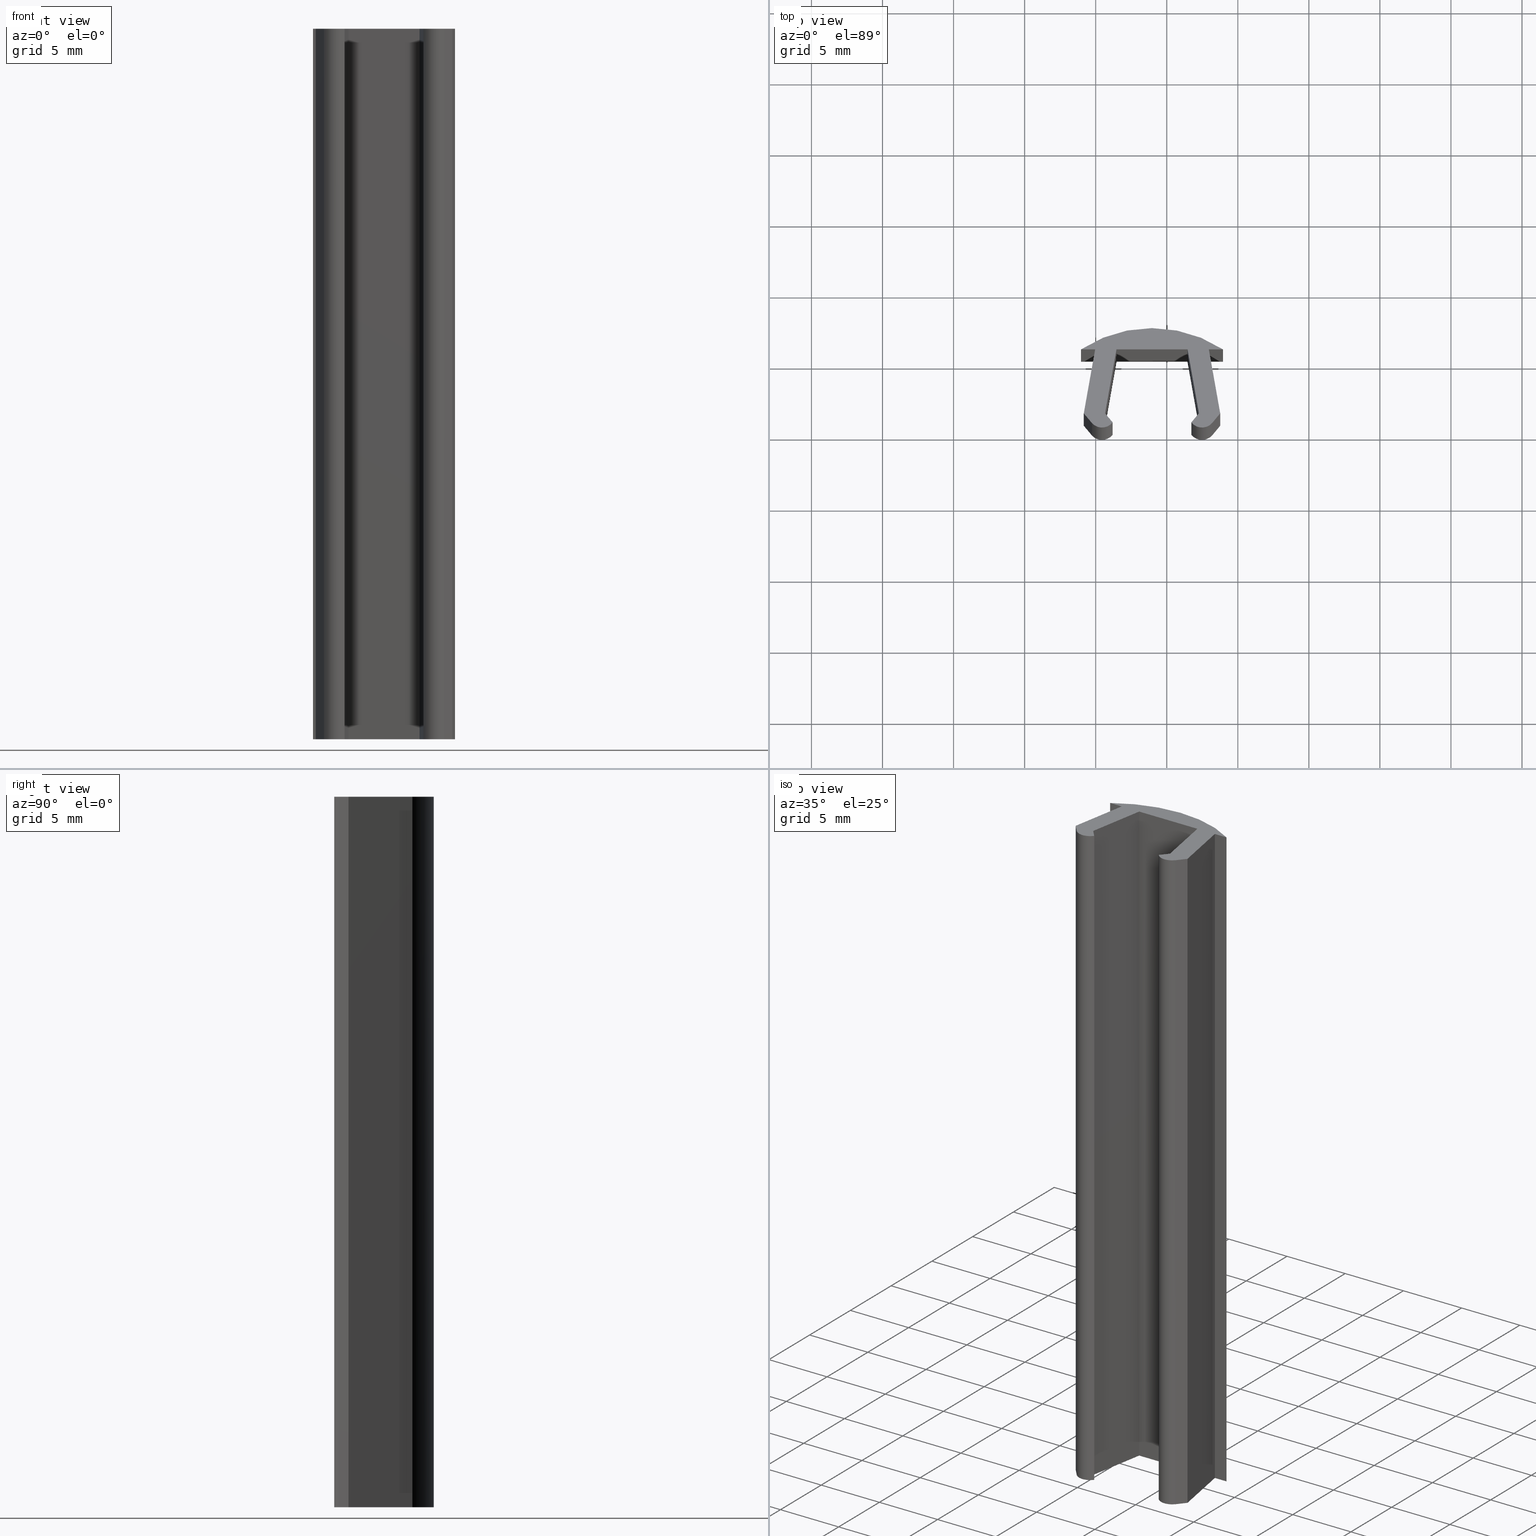
[diagram: canonical four-view strip — front | top / right | iso, engineering-drawing reading convention]
A machine part, canonical four-view strip (front | top / right | iso — engineering-drawing reading convention). The complete STEP part file that produces these views, byte-faithful:
ISO-10303-21;
HEADER;
FILE_DESCRIPTION (( 'STEP AP203' ),
    '1' );
FILE_NAME ('A39-25.STEP',
    '2018-04-03T11:34:47',
    ( 'User2' ),
    ( '' ),
    'SwSTEP 2.0',
    'SolidWorks 2007',
    '' );
FILE_SCHEMA (( 'CONFIG_CONTROL_DESIGN' ));
ENDSEC;

DATA;
#1 = DATE_TIME_ROLE ( 'creation_date' ) ;
#2 = PERSON_AND_ORGANIZATION_ROLE ( 'creator' ) ;
#3 = CARTESIAN_POINT ( 'NONE',  ( -0.8367053140000001400, 1.000000000000000000, 49.99999999999999300 ) ) ;
#4 = APPROVAL_ROLE ( '' ) ;
#5 = APPROVAL_STATUS ( 'not_yet_approved' ) ;
#6 = APPLICATION_PROTOCOL_DEFINITION ( 'international standard', 'config_control_design', 1994, #10 ) ;
#7 = CARTESIAN_POINT ( 'NONE',  ( -0.8367053138553806100, 1.000000000813483900, 0.0000000000000000000 ) ) ;
#8 = CARTESIAN_POINT ( 'NONE',  ( 7.963294685841867200, 5.500000000000000000, 0.0000000000000000000 ) ) ;
#9 = CARTESIAN_POINT ( 'NONE',  ( 8.963294685248413900, 5.500000000429616300, 50.00000000000000000 ) ) ;
#10 = APPLICATION_CONTEXT ( 'configuration controlled 3d designs of mechanical parts and assemblies' ) ;
#11 = PERSON_AND_ORGANIZATION_ROLE ( 'design_owner' ) ;
#12 = MECHANICAL_CONTEXT ( 'NONE', #14, 'mechanical' ) ;
#13 = APPLICATION_PROTOCOL_DEFINITION ( 'international standard', 'config_control_design', 1994, #14 ) ;
#14 = APPLICATION_CONTEXT ( 'configuration controlled 3d designs of mechanical parts and assemblies' ) ;
#15 = CARTESIAN_POINT ( 'NONE',  ( -1.036705315469700400, 5.499999998997998900, 0.0000000000000000000 ) ) ;
#16 = CARTESIAN_POINT ( 'NONE',  ( -0.2632543417690722500, 0.3146320893094953800, 49.99999999999999300 ) ) ;
#17 = CARTESIAN_POINT ( 'NONE',  ( 1.193008794993660500, 0.3669048105073159400, 50.00000000000000000 ) ) ;
#18 = CARTESIAN_POINT ( 'NONE',  ( 6.733580575902364800, 0.3669048108833120000, 0.0000000000000000000 ) ) ;
#19 = CARTESIAN_POINT ( 'NONE',  ( 1.463294687006839500, 5.499999998929228100, -8.673617379884035500E-016 ) ) ;
#20 = CARTESIAN_POINT ( 'NONE',  ( 8.763294684144618400, 0.9999999977825164700, 0.0000000000000000000 ) ) ;
#21 = DIRECTION ( 'NONE',  ( 1.000000000000000000, 0.0000000000000000000, 0.0000000000000000000 ) ) ;
#22 = DIRECTION ( 'NONE',  ( 0.0000000000000000000, 0.0000000000000000000, 1.000000000000000000 ) ) ;
#23 = CARTESIAN_POINT ( 'NONE',  ( 0.6632946842099405300, 1.000000002139414400, 0.0000000000000000000 ) ) ;
#24 = CARTESIAN_POINT ( 'NONE',  ( 0.0000000000000000000, 0.0000000000000000000, 0.0000000000000000000 ) ) ;
#25 =( NAMED_UNIT ( * ) SI_UNIT ( $, .STERADIAN. ) SOLID_ANGLE_UNIT ( ) );
#26 =( NAMED_UNIT ( * ) PLANE_ANGLE_UNIT ( ) SI_UNIT ( $, .RADIAN. ) );
#27 =( LENGTH_UNIT ( ) NAMED_UNIT ( * ) SI_UNIT ( .MILLI., .METRE. ) );
#28 = DIRECTION ( 'NONE',  ( -0.0000000000000000000, -0.0000000000000000000, -1.000000000000000000 ) ) ;
#29 = CARTESIAN_POINT ( 'NONE',  ( 8.189843712769047100, 0.3146320893094646200, 50.00000000000000000 ) ) ;
#30 = CARTESIAN_POINT ( 'NONE',  ( 6.463294684993158500, 5.499999998929228100, 0.0000000000000000000 ) ) ;
#31 = CARTESIAN_POINT ( 'NONE',  ( -0.2632543390000000000, 0.3146320860000000300, 25.00000000000000000 ) ) ;
#32 = CARTESIAN_POINT ( 'NONE',  ( 8.763294686000000100, 1.000000000000000000, 50.00000000000000000 ) ) ;
#33 = CARTESIAN_POINT ( 'NONE',  ( 7.263294687790059700, 1.000000002139414400, 0.0000000000000000000 ) ) ;
#34 = CARTESIAN_POINT ( 'NONE',  ( 7.263294686000000100, 1.000000000000000000, 50.00000000000000000 ) ) ;
#35 = DIRECTION ( 'NONE',  ( -0.6417093793053494400, 0.7669478942611049900, 0.0000000000000000000 ) ) ;
#36 = CARTESIAN_POINT ( 'NONE',  ( -0.2632543360799998700, 0.3146320859640001100, 0.0000000000000000000 ) ) ;
#37 = CARTESIAN_POINT ( 'NONE',  ( 8.189843712769047100, 0.3146320893094646800, -1.734723475976807100E-015 ) ) ;
#38 = CARTESIAN_POINT ( 'NONE',  ( 1.193008794993660500, 0.3669048105073159400, 0.0000000000000000000 ) ) ;
#39 = DIRECTION ( 'NONE',  ( 1.000000000000000000, 0.0000000000000000000, 0.0000000000000000000 ) ) ;
#40 = CARTESIAN_POINT ( 'NONE',  ( -0.03670531402000054600, 5.499999998997998900, 50.00000000000000000 ) ) ;
#41 = DIRECTION ( 'NONE',  ( -0.0000000000000000000, -0.0000000000000000000, -1.000000000000000000 ) ) ;
#42 = CARTESIAN_POINT ( 'NONE',  ( 1.193008794792056200, 0.3669048102480050300, 25.00000000000000000 ) ) ;
#43 = CARTESIAN_POINT ( 'NONE',  ( 6.463294686178134200, 5.499999998997998900, 50.00000000000000000 ) ) ;
#44 = CARTESIAN_POINT ( 'NONE',  ( -0.03670531404000108200, 5.499999997995998600, 0.0000000000000000000 ) ) ;
#45 = DIRECTION ( 'NONE',  ( 0.1750333347174945200, 0.9845625077859065900, 0.0000000000000000000 ) ) ;
#46 = CARTESIAN_POINT ( 'NONE',  ( -0.2632543211076045500, 0.3146320663425941600, 0.0000000000000000000 ) ) ;
#47 = CARTESIAN_POINT ( 'NONE',  ( -0.4367053140000000700, 3.250000000000000000, 0.0000000000000000000 ) ) ;
#48 = CARTESIAN_POINT ( 'NONE',  ( 1.463294685821866300, 5.499999998997998900, 50.00000000000000000 ) ) ;
#49 = CARTESIAN_POINT ( 'NONE',  ( 7.963294686000001100, 5.500000000000000000, 50.00000000000000000 ) ) ;
#50 = CARTESIAN_POINT ( 'NONE',  ( 6.733580575902364800, 0.3669048108833120000, 50.00000000000000000 ) ) ;
#51 = CARTESIAN_POINT ( 'NONE',  ( -1.036705315469700400, 5.499999998997998900, 50.00000000000000000 ) ) ;
#52 = CARTESIAN_POINT ( 'NONE',  ( 8.963294685248413900, 5.500000000429616300, 0.0000000000000000000 ) ) ;
#53 = APPROVAL_ROLE ( '' ) ;
#54 = APPROVAL_STATUS ( 'not_yet_approved' ) ;
#55 = DATE_TIME_ROLE ( 'classification_date' ) ;
#56 = PERSON_AND_ORGANIZATION_ROLE ( 'classification_officer' ) ;
#57 = SECURITY_CLASSIFICATION_LEVEL ( 'unclassified' ) ;
#58 = PERSON_AND_ORGANIZATION_ROLE ( 'design_supplier' ) ;
#59 = CARTESIAN_POINT ( 'NONE',  ( 0.6632946860000001900, 1.000000000000000000, 50.00000000000000000 ) ) ;
#60 = CARTESIAN_POINT ( 'NONE',  ( -0.8367053140000001400, 1.000000000000000000, 25.00000000000000000 ) ) ;
#61 = PERSON_AND_ORGANIZATION_ROLE ( 'creator' ) ;
#62 = APPROVAL_ROLE ( '' ) ;
#63 = APPROVAL_STATUS ( 'not_yet_approved' ) ;
#64 = DIRECTION ( 'NONE',  ( 0.0000000000000000000, 0.0000000000000000000, 1.000000000000000000 ) ) ;
#65 = CARTESIAN_POINT ( 'NONE',  ( 8.463294686000001100, 5.500000000000000000, 50.00000000000000000 ) ) ;
#66 = DIRECTION ( 'NONE',  ( 0.0000000000000000000, 0.0000000000000000000, 1.000000000000000000 ) ) ;
#67 = CARTESIAN_POINT ( 'NONE',  ( 8.963294684596828400, 5.500000000859232700, 25.00000000000000000 ) ) ;
#68 = DIRECTION ( 'NONE',  ( 1.000000000000000000, 0.0000000000000000000, 0.0000000000000000000 ) ) ;
#69 = DIRECTION ( 'NONE',  ( -0.0000000000000000000, 0.0000000000000000000, -1.000000000000000000 ) ) ;
#70 = CARTESIAN_POINT ( 'NONE',  ( 7.483580575999998700, 0.9500000000000000700, 0.0000000000000000000 ) ) ;
#71 = DIRECTION ( 'NONE',  ( 0.6417093791478050100, 0.7669478943929233200, -0.0000000000000000000 ) ) ;
#72 = CARTESIAN_POINT ( 'NONE',  ( 8.476569198000000000, 0.6573160430000000200, 50.00000000000000000 ) ) ;
#73 = DIRECTION ( 'NONE',  ( 0.0000000000000000000, 0.0000000000000000000, 1.000000000000000000 ) ) ;
#74 = CARTESIAN_POINT ( 'NONE',  ( 8.763294686000000100, 1.000000000000000000, 25.00000000000000000 ) ) ;
#75 = DIRECTION ( 'NONE',  ( -0.6417093791478050100, -0.7669478943929233200, 0.0000000000000000000 ) ) ;
#76 = CARTESIAN_POINT ( 'NONE',  ( 7.963294686040000200, 5.499999997995998600, 0.0000000000000000000 ) ) ;
#77 = CARTESIAN_POINT ( 'NONE',  ( 0.4430087950000001200, 0.9500000000000000700, 50.00000000000000000 ) ) ;
#78 = CARTESIAN_POINT ( 'NONE',  ( 8.476569198000000000, 0.6573160430000000200, 0.0000000000000000000 ) ) ;
#79 = DIRECTION ( 'NONE',  ( -1.000000000000000000, 0.0000000000000000000, 0.0000000000000000000 ) ) ;
#80 = CARTESIAN_POINT ( 'NONE',  ( 3.963294685999999800, 5.499999997995998600, 0.0000000000000000000 ) ) ;
#81 = DIRECTION ( 'NONE',  ( -0.0000000000000000000, -0.0000000000000000000, -1.000000000000000000 ) ) ;
#82 = CARTESIAN_POINT ( 'NONE',  ( 1.463294685999999600, 5.500000000000000000, 25.00000000000000000 ) ) ;
#83 = DIRECTION ( 'NONE',  ( -1.000000000000000000, 0.0000000000000000000, 0.0000000000000000000 ) ) ;
#84 = CARTESIAN_POINT ( 'NONE',  ( 3.963294685999999800, 5.499999997995998600, 50.00000000000000000 ) ) ;
#85 = DIRECTION ( 'NONE',  ( 0.6417093790113396200, -0.7669478945071045400, 0.0000000000000000000 ) ) ;
#86 = CARTESIAN_POINT ( 'NONE',  ( 0.9281517404999999300, 0.6834524055000000800, 0.0000000000000000000 ) ) ;
#87 = DIRECTION ( 'NONE',  ( -0.1750333347174943500, -0.9845625077859065900, 0.0000000000000000000 ) ) ;
#88 = CARTESIAN_POINT ( 'NONE',  ( 1.463294685999999600, 5.500000000000000000, 50.00000000000000000 ) ) ;
#89 = DIRECTION ( 'NONE',  ( 0.1750333338303418600, -0.9845625079436226600, 0.0000000000000000000 ) ) ;
#90 = DIRECTION ( 'NONE',  ( 1.000000000000000000, 0.0000000000000000000, 0.0000000000000000000 ) ) ;
#91 = DIRECTION ( 'NONE',  ( -0.0000000000000000000, 0.0000000000000000000, -1.000000000000000000 ) ) ;
#92 = DIRECTION ( 'NONE',  ( -0.0000000000000000000, -0.0000000000000000000, -1.000000000000000000 ) ) ;
#93 = CARTESIAN_POINT ( 'NONE',  ( 0.6632946860000001900, 1.000000000000000000, 25.00000000000000000 ) ) ;
#94 = CARTESIAN_POINT ( 'NONE',  ( 0.4430087950000001200, 0.9500000000000000700, 0.0000000000000000000 ) ) ;
#95 = DIRECTION ( 'NONE',  ( -0.1750333359766786100, -0.9845625075620516600, 0.0000000000000000000 ) ) ;
#96 = CARTESIAN_POINT ( 'NONE',  ( 1.463294687239998800, 5.499999997995998600, 0.0000000000000000000 ) ) ;
#97 = DIRECTION ( 'NONE',  ( 0.0000000000000000000, 0.0000000000000000000, 1.000000000000000000 ) ) ;
#98 = DIRECTION ( 'NONE',  ( 0.0000000000000000000, 0.0000000000000000000, 1.000000000000000000 ) ) ;
#99 = CARTESIAN_POINT ( 'NONE',  ( 8.189843709999999900, 0.3146320860000000300, 25.00000000000000000 ) ) ;
#100 = DIRECTION ( 'NONE',  ( -0.1750333359766791700, 0.9845625075620515500, 0.0000000000000000000 ) ) ;
#101 = CARTESIAN_POINT ( 'NONE',  ( -0.03670531400000000300, 5.500000000000000000, 25.00000000000000000 ) ) ;
#102 = DIRECTION ( 'NONE',  ( -1.000000000000000000, 0.0000000000000000000, 0.0000000000000000000 ) ) ;
#103 = CARTESIAN_POINT ( 'NONE',  ( 3.963294685999999800, 5.499999997995998600, 50.00000000000000000 ) ) ;
#104 = DIRECTION ( 'NONE',  ( -1.000000000000000000, 0.0000000000000000000, 0.0000000000000000000 ) ) ;
#105 = CARTESIAN_POINT ( 'NONE',  ( 7.263294690839999600, 0.9999999971920000600, 0.0000000000000000000 ) ) ;
#106 = CARTESIAN_POINT ( 'NONE',  ( 3.963294685999999800, 5.499999997995998600, 0.0000000000000000000 ) ) ;
#107 = DIRECTION ( 'NONE',  ( -0.0000000000000000000, -0.0000000000000000000, -1.000000000000000000 ) ) ;
#108 = CARTESIAN_POINT ( 'NONE',  ( 6.463294686000000200, 5.500000000000000000, 25.00000000000000000 ) ) ;
#109 = DIRECTION ( 'NONE',  ( -0.6417093790113396200, 0.7669478945071045400, -0.0000000000000000000 ) ) ;
#110 = DIRECTION ( 'NONE',  ( -0.1750333347174943800, 0.9845625077859065900, 0.0000000000000000000 ) ) ;
#111 = CARTESIAN_POINT ( 'NONE',  ( 7.263294686000000100, 1.000000000000000000, 50.00000000000000000 ) ) ;
#112 = DIRECTION ( 'NONE',  ( 1.000000000000000000, 0.0000000000000000000, 0.0000000000000000000 ) ) ;
#113 = CARTESIAN_POINT ( 'NONE',  ( 7.963294686000001100, 5.500000000000000000, 50.00000000000000000 ) ) ;
#114 = CARTESIAN_POINT ( 'NONE',  ( 0.9281517404999999300, 0.6834524055000000800, 50.00000000000000000 ) ) ;
#115 = DIRECTION ( 'NONE',  ( 0.1750333347174942400, -0.9845625077859065900, 0.0000000000000000000 ) ) ;
#116 = DIRECTION ( 'NONE',  ( -0.1750333347174945200, -0.9845625077859065900, -0.0000000000000000000 ) ) ;
#117 = CARTESIAN_POINT ( 'NONE',  ( -0.4367053140000000700, 3.250000000000000000, 50.00000000000000000 ) ) ;
#118 = DIRECTION ( 'NONE',  ( -0.6417093784895814300, 0.7669478949436624400, 0.0000000000000000000 ) ) ;
#119 = CARTESIAN_POINT ( 'NONE',  ( -0.2632543390000000000, 0.3146320860000000300, 49.99999999999998600 ) ) ;
#120 = DIRECTION ( 'NONE',  ( 1.000000000000000000, 0.0000000000000000000, 0.0000000000000000000 ) ) ;
#121 = DIRECTION ( 'NONE',  ( -0.0000000000000000000, 0.0000000000000000000, -1.000000000000000000 ) ) ;
#122 = ADVANCED_FACE ( 'NONE', ( #452 ), #181, .F. ) ;
#123 = ADVANCED_FACE ( 'NONE', ( #455 ), #456, .T. ) ;
#124 = ADVANCED_FACE ( 'NONE', ( #458 ), #180, .F. ) ;
#125 = MANIFOLD_SOLID_BREP ( 'NONE', #403 ) ;
#126 = ADVANCED_FACE ( 'NONE', ( #460 ), #196, .F. ) ;
#127 = ADVANCED_FACE ( 'NONE', ( #462 ), #463, .T. ) ;
#128 = ADVANCED_FACE ( 'NONE', ( #464 ), #226, .F. ) ;
#129 = ADVANCED_FACE ( 'NONE', ( #465 ), #234, .F. ) ;
#130 = ADVANCED_BREP_SHAPE_REPRESENTATION ( 'A39-25', ( #125, #497 ), #310 ) ;
#131 = ADVANCED_FACE ( 'NONE', ( #466 ), #467, .T. ) ;
#132 = ADVANCED_FACE ( 'NONE', ( #468 ), #205, .F. ) ;
#133 = ADVANCED_FACE ( 'NONE', ( #469 ), #531, .F. ) ;
#134 = ADVANCED_FACE ( 'NONE', ( #470 ), #527, .F. ) ;
#135 = ADVANCED_FACE ( 'NONE', ( #471 ), #535, .F. ) ;
#136 = ADVANCED_FACE ( 'NONE', ( #472 ), #539, .F. ) ;
#137 = ADVANCED_FACE ( 'NONE', ( #473 ), #543, .F. ) ;
#138 = ADVANCED_FACE ( 'NONE', ( #238 ), #547, .T. ) ;
#139 = ADVANCED_FACE ( 'NONE', ( #239 ), #551, .F. ) ;
#140 = UNCERTAINTY_MEASURE_WITH_UNIT (LENGTH_MEASURE( 1.000000000000000100E-005 ), #27, 'distance_accuracy_value', 'NONE');
#141 = EDGE_CURVE ( 'NONE', #222, #207, #244, .T. ) ;
#142 = EDGE_CURVE ( 'NONE', #231, #207, #242, .T. ) ;
#143 = EDGE_CURVE ( 'NONE', #185, #228, #240, .T. ) ;
#144 = EDGE_CURVE ( 'NONE', #228, #197, #459, .T. ) ;
#145 = EDGE_CURVE ( 'NONE', #185, #189, #454, .T. ) ;
#146 = EDGE_CURVE ( 'NONE', #228, #191, #444, .T. ) ;
#147 = EDGE_CURVE ( 'NONE', #197, #189, #448, .T. ) ;
#148 = EDGE_CURVE ( 'NONE', #202, #231, #431, .T. ) ;
#149 = EDGE_CURVE ( 'NONE', #202, #229, #434, .T. ) ;
#150 = EDGE_CURVE ( 'NONE', #229, #200, #421, .T. ) ;
#151 = EDGE_CURVE ( 'NONE', #222, #188, #424, .T. ) ;
#152 = EDGE_CURVE ( 'NONE', #207, #194, #415, .T. ) ;
#153 = EDGE_CURVE ( 'NONE', #185, #214, #410, .T. ) ;
#154 = EDGE_CURVE ( 'NONE', #214, #192, #246, .T. ) ;
#155 = EDGE_CURVE ( 'NONE', #189, #192, #247, .T. ) ;
#156 = EDGE_CURVE ( 'NONE', #187, #191, #342, .T. ) ;
#157 = EDGE_CURVE ( 'NONE', #211, #212, #270, .T. ) ;
#158 = EDGE_CURVE ( 'NONE', #195, #211, #266, .T. ) ;
#159 = EDGE_CURVE ( 'NONE', #199, #198, #264, .T. ) ;
#160 = EDGE_CURVE ( 'NONE', #198, #210, #263, .T. ) ;
#161 = EDGE_CURVE ( 'NONE', #213, #210, #269, .T. ) ;
#162 = EDGE_CURVE ( 'NONE', #199, #221, #272, .T. ) ;
#163 = EDGE_CURVE ( 'NONE', #219, #202, #339, .T. ) ;
#164 = EDGE_CURVE ( 'NONE', #213, #229, #338, .T. ) ;
#165 = EDGE_CURVE ( 'NONE', #219, #213, #332, .T. ) ;
#166 = EDGE_CURVE ( 'NONE', #193, #195, #334, .T. ) ;
#167 = EDGE_CURVE ( 'NONE', #221, #195, #328, .T. ) ;
#168 = EDGE_CURVE ( 'NONE', #220, #221, #330, .T. ) ;
#169 = EDGE_CURVE ( 'NONE', #214, #220, #326, .T. ) ;
#170 = EDGE_CURVE ( 'NONE', #220, #193, #276, .T. ) ;
#171 = EDGE_CURVE ( 'NONE', #192, #193, #277, .T. ) ;
#172 = EDGE_CURVE ( 'NONE', #194, #187, #279, .T. ) ;
#173 = EDGE_CURVE ( 'NONE', #194, #188, #281, .T. ) ;
#174 = EDGE_CURVE ( 'NONE', #191, #188, #283, .T. ) ;
#175 = EDGE_CURVE ( 'NONE', #187, #197, #323, .T. ) ;
#176 = EDGE_CURVE ( 'NONE', #231, #200, #273, .T. ) ;
#177 = EDGE_CURVE ( 'NONE', #222, #200, #318, .T. ) ;
#178 = DIRECTION ( 'NONE',  ( 1.000000000000000000, 0.0000000000000000000, 0.0000000000000000000 ) ) ;
#179 = DIRECTION ( 'NONE',  ( 1.000000000000000000, 0.0000000000000000000, 0.0000000000000000000 ) ) ;
#180 = PLANE ( 'NONE',  #517 ) ;
#181 = PLANE ( 'NONE',  #515 ) ;
#182 = DIRECTION ( 'NONE',  ( 0.1750333347174945200, 0.9845625077859065900, 0.0000000000000000000 ) ) ;
#183 = CARTESIAN_POINT ( 'NONE',  ( -0.8367053140000001400, 1.000000000000000000, 0.0000000000000000000 ) ) ;
#184 = CARTESIAN_POINT ( 'NONE',  ( -0.2632543390000000000, 0.3146320860000000300, 0.0000000000000000000 ) ) ;
#185 = VERTEX_POINT ( 'NONE', #34 ) ;
#186 = DIRECTION ( 'NONE',  ( 0.7669478949436625600, 0.6417093784895815400, -0.0000000000000000000 ) ) ;
#187 = VERTEX_POINT ( 'NONE', #37 ) ;
#188 = VERTEX_POINT ( 'NONE', #32 ) ;
#189 = VERTEX_POINT ( 'NONE', #33 ) ;
#190 = DIRECTION ( 'NONE',  ( -0.6417093784895814300, 0.7669478949436624400, 0.0000000000000000000 ) ) ;
#191 = VERTEX_POINT ( 'NONE', #29 ) ;
#192 = VERTEX_POINT ( 'NONE', #30 ) ;
#193 = VERTEX_POINT ( 'NONE', #19 ) ;
#194 = VERTEX_POINT ( 'NONE', #20 ) ;
#195 = VERTEX_POINT ( 'NONE', #23 ) ;
#196 = PLANE ( 'NONE',  #518 ) ;
#197 = VERTEX_POINT ( 'NONE', #18 ) ;
#198 = VERTEX_POINT ( 'NONE', #16 ) ;
#199 = VERTEX_POINT ( 'NONE', #17 ) ;
#200 = VERTEX_POINT ( 'NONE', #9 ) ;
#201 = CARTESIAN_POINT ( 'NONE',  ( 6.733580575999998700, 0.3669048110000001100, 0.0000000000000000000 ) ) ;
#202 = VERTEX_POINT ( 'NONE', #15 ) ;
#203 = VERTEX_POINT ( 'NONE', #7 ) ;
#204 = DIRECTION ( 'NONE',  ( -0.9845625077859067000, -0.1750333347174942700, 0.0000000000000000000 ) ) ;
#205 = PLANE ( 'NONE',  #504 ) ;
#206 = CARTESIAN_POINT ( 'NONE',  ( 3.963294686000000700, -2.083333333000000100, 0.0000000000000000000 ) ) ;
#207 = VERTEX_POINT ( 'NONE', #8 ) ;
#208 = CARTESIAN_POINT ( 'NONE',  ( 7.963294686000001100, 5.500000000000000000, 0.0000000000000000000 ) ) ;
#209 = DIRECTION ( 'NONE',  ( 0.9845625077859067000, -0.1750333347174945500, 0.0000000000000000000 ) ) ;
#210 = VERTEX_POINT ( 'NONE', #3 ) ;
#211 = VERTEX_POINT ( 'NONE', #38 ) ;
#212 = VERTEX_POINT ( 'NONE', #46 ) ;
#213 = VERTEX_POINT ( 'NONE', #40 ) ;
#214 = VERTEX_POINT ( 'NONE', #43 ) ;
#215 = DIRECTION ( 'NONE',  ( 0.0000000000000000000, 0.0000000000000000000, 1.000000000000000000 ) ) ;
#216 = DIRECTION ( 'NONE',  ( 0.7669478939108912400, -0.6417093797239122900, 0.0000000000000000000 ) ) ;
#217 = DIRECTION ( 'NONE',  ( 0.0000000000000000000, 1.000000000000000000, 0.0000000000000000000 ) ) ;
#218 = DIRECTION ( 'NONE',  ( 0.6417093797239122900, 0.7669478939108912400, 0.0000000000000000000 ) ) ;
#219 = VERTEX_POINT ( 'NONE', #44 ) ;
#220 = VERTEX_POINT ( 'NONE', #48 ) ;
#221 = VERTEX_POINT ( 'NONE', #59 ) ;
#222 = VERTEX_POINT ( 'NONE', #49 ) ;
#223 = CARTESIAN_POINT ( 'NONE',  ( 7.483580575999998700, 0.9500000000000000700, 0.0000000000000000000 ) ) ;
#224 = DIRECTION ( 'NONE',  ( 0.0000000000000000000, -0.0000000000000000000, 1.000000000000000000 ) ) ;
#225 = DIRECTION ( 'NONE',  ( 1.000000000000000000, 0.0000000000000000000, 0.0000000000000000000 ) ) ;
#226 = PLANE ( 'NONE',  #520 ) ;
#227 = CARTESIAN_POINT ( 'NONE',  ( 8.763294686000000100, 1.000000000000000000, 0.0000000000000000000 ) ) ;
#228 = VERTEX_POINT ( 'NONE', #50 ) ;
#229 = VERTEX_POINT ( 'NONE', #51 ) ;
#230 = DIRECTION ( 'NONE',  ( -0.7669478943929233200, 0.6417093791478051300, 0.0000000000000000000 ) ) ;
#231 = VERTEX_POINT ( 'NONE', #52 ) ;
#232 = CARTESIAN_POINT ( 'NONE',  ( 7.963294686000001100, 5.500000000000000000, 0.0000000000000000000 ) ) ;
#233 = DIRECTION ( 'NONE',  ( 0.0000000000000000000, -0.0000000000000000000, 1.000000000000000000 ) ) ;
#234 = PLANE ( 'NONE',  #521 ) ;
#235 = CARTESIAN_POINT ( 'NONE',  ( 0.4430087950000001200, 0.9500000000000000700, 0.0000000000000000000 ) ) ;
#236 = DIRECTION ( 'NONE',  ( -0.6417093791478050100, -0.7669478943929232100, 0.0000000000000000000 ) ) ;
#237 = DIRECTION ( 'NONE',  ( 0.0000000000000000000, 0.0000000000000000000, 1.000000000000000000 ) ) ;
#238 = FACE_OUTER_BOUND ( 'NONE', #396, .T. ) ;
#239 = FACE_OUTER_BOUND ( 'NONE', #402, .T. ) ;
#240 = LINE ( 'NONE', #565, #461 ) ;
#241 = VECTOR ( 'NONE', #562, 1000.000000000000000 ) ;
#242 = LINE ( 'NONE', #557, #241 ) ;
#243 = VECTOR ( 'NONE', #556, 1000.000000000000000 ) ;
#244 = LINE ( 'NONE', #555, #243 ) ;
#245 = VECTOR ( 'NONE', #110, 1000.000000000000100 ) ;
#246 = LINE ( 'NONE', #108, #344 ) ;
#247 = LINE ( 'NONE', #105, #346 ) ;
#248 = PERSON_AND_ORGANIZATION ( #487, #308 ) ;
#249 = COORDINATED_UNIVERSAL_TIME_OFFSET ( 3, 0, .BEHIND. ) ;
#250 = LOCAL_TIME ( 8, 34, 47.00000000000000000, #249 ) ;
#251 = CALENDAR_DATE ( 2018, 3, 4 ) ;
#252 = DATE_AND_TIME ( #251, #250 ) ;
#253 = PERSON_AND_ORGANIZATION ( #487, #308 ) ;
#254 = APPROVAL_PERSON_ORGANIZATION ( #253, #491, #53 ) ;
#255 = COORDINATED_UNIVERSAL_TIME_OFFSET ( 3, 0, .BEHIND. ) ;
#256 = LOCAL_TIME ( 8, 34, 47.00000000000000000, #255 ) ;
#257 = CALENDAR_DATE ( 2018, 3, 4 ) ;
#258 = DATE_AND_TIME ( #257, #256 ) ;
#259 = APPROVAL_DATE_TIME ( #258, #491 ) ;
#260 = VECTOR ( 'NONE', #45, 1000.000000000000200 ) ;
#261 = PERSON_AND_ORGANIZATION ( #487, #308 ) ;
#262 = ORIENTED_EDGE ( 'NONE', *, *, #144, .T. ) ;
#263 = LINE ( 'NONE', #119, #265 ) ;
#264 = CIRCLE ( 'NONE', #512, 0.9499999999999997300 ) ;
#265 = VECTOR ( 'NONE', #118, 1000.000000000000200 ) ;
#266 = LINE ( 'NONE', #86, #347 ) ;
#267 = ORIENTED_EDGE ( 'NONE', *, *, #174, .F. ) ;
#268 = VECTOR ( 'NONE', #116, 1000.000000000000200 ) ;
#269 = LINE ( 'NONE', #117, #268 ) ;
#270 = CIRCLE ( 'NONE', #506, 0.9499999999999997300 ) ;
#271 = VECTOR ( 'NONE', #109, 1000.000000000000000 ) ;
#272 = LINE ( 'NONE', #114, #271 ) ;
#273 = LINE ( 'NONE', #67, #322 ) ;
#274 = LINE ( 'NONE', #47, #260 ) ;
#275 = LINE ( 'NONE', #42, #314 ) ;
#276 = LINE ( 'NONE', #82, #285 ) ;
#277 = LINE ( 'NONE', #80, #278 ) ;
#278 = VECTOR ( 'NONE', #79, 1000.000000000000000 ) ;
#279 = LINE ( 'NONE', #78, #280 ) ;
#280 = VECTOR ( 'NONE', #75, 1000.000000000000200 ) ;
#281 = LINE ( 'NONE', #74, #282 ) ;
#282 = VECTOR ( 'NONE', #73, 1000.000000000000000 ) ;
#283 = LINE ( 'NONE', #72, #284 ) ;
#284 = VECTOR ( 'NONE', #71, 1000.000000000000200 ) ;
#285 = VECTOR ( 'NONE', #81, 1000.000000000000000 ) ;
#286 = SECURITY_CLASSIFICATION ( '', '', #57 ) ;
#287 = PERSON_AND_ORGANIZATION ( #487, #308 ) ;
#288 = APPROVAL_DATE_TIME ( #290, #477 ) ;
#289 = LOCAL_TIME ( 8, 34, 47.00000000000000000, #292 ) ;
#290 = DATE_AND_TIME ( #291, #289 ) ;
#291 = CALENDAR_DATE ( 2018, 3, 4 ) ;
#292 = COORDINATED_UNIVERSAL_TIME_OFFSET ( 3, 0, .BEHIND. ) ;
#293 = APPROVAL_PERSON_ORGANIZATION ( #294, #477, #62 ) ;
#294 = PERSON_AND_ORGANIZATION ( #487, #308 ) ;
#295 = DATE_AND_TIME ( #297, #298 ) ;
#296 = COORDINATED_UNIVERSAL_TIME_OFFSET ( 3, 0, .BEHIND. ) ;
#297 = CALENDAR_DATE ( 2018, 3, 4 ) ;
#298 = LOCAL_TIME ( 8, 34, 47.00000000000000000, #296 ) ;
#299 = DATE_AND_TIME ( #303, #301 ) ;
#300 = PERSON_AND_ORGANIZATION ( #487, #308 ) ;
#301 = LOCAL_TIME ( 8, 34, 47.00000000000000000, #304 ) ;
#302 = APPROVAL_DATE_TIME ( #299, #482 ) ;
#303 = CALENDAR_DATE ( 2018, 3, 4 ) ;
#304 = COORDINATED_UNIVERSAL_TIME_OFFSET ( 3, 0, .BEHIND. ) ;
#305 = APPROVAL_PERSON_ORGANIZATION ( #306, #482, #4 ) ;
#306 = PERSON_AND_ORGANIZATION ( #487, #308 ) ;
#307 = PERSON_AND_ORGANIZATION ( #487, #308 ) ;
#308 = ORGANIZATION ( 'UNSPECIFIED', 'UNSPECIFIED', '' ) ;
#309 = SHAPE_DEFINITION_REPRESENTATION ( #485, #130 ) ;
#310 =( GEOMETRIC_REPRESENTATION_CONTEXT ( 3 ) GLOBAL_UNCERTAINTY_ASSIGNED_CONTEXT ( ( #140 ) ) GLOBAL_UNIT_ASSIGNED_CONTEXT ( ( #27, #26, #25 ) ) REPRESENTATION_CONTEXT ( 'NONE', 'WORKASPACE' ) );
#311 = VECTOR ( 'NONE', #28, 1000.000000000000000 ) ;
#312 = LINE ( 'NONE', #31, #311 ) ;
#313 = VECTOR ( 'NONE', #35, 1000.000000000000000 ) ;
#314 = VECTOR ( 'NONE', #41, 1000.000000000000000 ) ;
#315 = LINE ( 'NONE', #36, #313 ) ;
#316 = LINE ( 'NONE', #60, #320 ) ;
#317 = VECTOR ( 'NONE', #39, 1000.000000000000000 ) ;
#318 = LINE ( 'NONE', #65, #317 ) ;
#319 = ORIENTED_EDGE ( 'NONE', *, *, #176, .T. ) ;
#320 = VECTOR ( 'NONE', #64, 1000.000000000000000 ) ;
#321 = ORIENTED_EDGE ( 'NONE', *, *, #175, .F. ) ;
#322 = VECTOR ( 'NONE', #66, 1000.000000000000000 ) ;
#323 = CIRCLE ( 'NONE', #505, 0.9500000000000038400 ) ;
#324 = ORIENTED_EDGE ( 'NONE', *, *, #156, .T. ) ;
#325 = ORIENTED_EDGE ( 'NONE', *, *, #146, .F. ) ;
#326 = LINE ( 'NONE', #84, #327 ) ;
#327 = VECTOR ( 'NONE', #83, 1000.000000000000000 ) ;
#328 = LINE ( 'NONE', #93, #329 ) ;
#329 = VECTOR ( 'NONE', #92, 1000.000000000000000 ) ;
#330 = LINE ( 'NONE', #88, #331 ) ;
#331 = VECTOR ( 'NONE', #87, 1000.000000000000100 ) ;
#332 = LINE ( 'NONE', #101, #333 ) ;
#333 = VECTOR ( 'NONE', #97, 1000.000000000000000 ) ;
#334 = LINE ( 'NONE', #96, #335 ) ;
#335 = VECTOR ( 'NONE', #95, 1000.000000000000200 ) ;
#336 = VECTOR ( 'NONE', #102, 1000.000000000000000 ) ;
#337 = VECTOR ( 'NONE', #104, 1000.000000000000000 ) ;
#338 = LINE ( 'NONE', #103, #336 ) ;
#339 = LINE ( 'NONE', #106, #337 ) ;
#340 = ORIENTED_EDGE ( 'NONE', *, *, #156, .F. ) ;
#341 = ORIENTED_EDGE ( 'NONE', *, *, #172, .F. ) ;
#342 = LINE ( 'NONE', #99, #345 ) ;
#343 = ORIENTED_EDGE ( 'NONE', *, *, #173, .T. ) ;
#344 = VECTOR ( 'NONE', #107, 1000.000000000000000 ) ;
#345 = VECTOR ( 'NONE', #98, 1000.000000000000000 ) ;
#346 = VECTOR ( 'NONE', #100, 1000.000000000000100 ) ;
#347 = VECTOR ( 'NONE', #85, 1000.000000000000000 ) ;
#348 = ORIENTED_EDGE ( 'NONE', *, *, #510, .T. ) ;
#349 = ORIENTED_EDGE ( 'NONE', *, *, #177, .F. ) ;
#350 = ORIENTED_EDGE ( 'NONE', *, *, #141, .T. ) ;
#351 = ORIENTED_EDGE ( 'NONE', *, *, #142, .F. ) ;
#352 = ORIENTED_EDGE ( 'NONE', *, *, #144, .F. ) ;
#353 = ORIENTED_EDGE ( 'NONE', *, *, #143, .F. ) ;
#354 = ORIENTED_EDGE ( 'NONE', *, *, #145, .T. ) ;
#355 = ORIENTED_EDGE ( 'NONE', *, *, #147, .F. ) ;
#356 = ORIENTED_EDGE ( 'NONE', *, *, #176, .F. ) ;
#357 = ORIENTED_EDGE ( 'NONE', *, *, #148, .F. ) ;
#358 = ORIENTED_EDGE ( 'NONE', *, *, #149, .T. ) ;
#359 = ORIENTED_EDGE ( 'NONE', *, *, #150, .T. ) ;
#360 = ORIENTED_EDGE ( 'NONE', *, *, #141, .F. ) ;
#361 = ORIENTED_EDGE ( 'NONE', *, *, #151, .T. ) ;
#362 = ORIENTED_EDGE ( 'NONE', *, *, #173, .F. ) ;
#363 = ORIENTED_EDGE ( 'NONE', *, *, #142, .T. ) ;
#364 = ORIENTED_EDGE ( 'NONE', *, *, #152, .T. ) ;
#365 = ORIENTED_EDGE ( 'NONE', *, *, #172, .T. ) ;
#366 = ORIENTED_EDGE ( 'NONE', *, *, #175, .T. ) ;
#367 = ORIENTED_EDGE ( 'NONE', *, *, #147, .T. ) ;
#368 = ORIENTED_EDGE ( 'NONE', *, *, #155, .T. ) ;
#369 = ORIENTED_EDGE ( 'NONE', *, *, #507, .T. ) ;
#370 = ORIENTED_EDGE ( 'NONE', *, *, #158, .F. ) ;
#371 = ORIENTED_EDGE ( 'NONE', *, *, #167, .F. ) ;
#372 = ORIENTED_EDGE ( 'NONE', *, *, #162, .F. ) ;
#373 = ORIENTED_EDGE ( 'NONE', *, *, #495, .T. ) ;
#374 = ORIENTED_EDGE ( 'NONE', *, *, #161, .F. ) ;
#375 = ORIENTED_EDGE ( 'NONE', *, *, #165, .F. ) ;
#376 = ORIENTED_EDGE ( 'NONE', *, *, #496, .F. ) ;
#377 = ORIENTED_EDGE ( 'NONE', *, *, #514, .T. ) ;
#378 = ORIENTED_EDGE ( 'NONE', *, *, #157, .F. ) ;
#379 = ORIENTED_EDGE ( 'NONE', *, *, #507, .F. ) ;
#380 = ORIENTED_EDGE ( 'NONE', *, *, #159, .T. ) ;
#381 = ORIENTED_EDGE ( 'NONE', *, *, #514, .F. ) ;
#382 = ORIENTED_EDGE ( 'NONE', *, *, #160, .T. ) ;
#383 = ORIENTED_EDGE ( 'NONE', *, *, #495, .F. ) ;
#384 = ORIENTED_EDGE ( 'NONE', *, *, #510, .F. ) ;
#385 = ORIENTED_EDGE ( 'NONE', *, *, #496, .T. ) ;
#386 = ORIENTED_EDGE ( 'NONE', *, *, #163, .T. ) ;
#387 = EDGE_LOOP ( 'NONE', ( #356, #357, #358, #359 ) ) ;
#388 = EDGE_LOOP ( 'NONE', ( #352, #353, #354, #355 ) ) ;
#389 = EDGE_LOOP ( 'NONE', ( #360, #361, #362, #440 ) ) ;
#390 = EDGE_LOOP ( 'NONE', ( #319, #349, #350, #351 ) ) ;
#391 = EDGE_LOOP ( 'NONE', ( #262, #321, #324, #325 ) ) ;
#392 = EDGE_LOOP ( 'NONE', ( #340, #341, #343, #267 ) ) ;
#393 = EDGE_LOOP ( 'NONE', ( #417, #443, #445, #446 ) ) ;
#394 = EDGE_LOOP ( 'NONE', ( #439, #437, #438, #435 ) ) ;
#395 = EDGE_LOOP ( 'NONE', ( #450, #447, #449, #442 ) ) ;
#396 = EDGE_LOOP ( 'NONE', ( #404, #405, #407, #406, #348, #385, #386, #451, #363, #364, #365, #366, #367, #368 ) ) ;
#397 = EDGE_LOOP ( 'NONE', ( #429, #427, #426, #423, #425, #422, #420, #419, #409, #411, #408, #412, #414, #416 ) ) ;
#398 = EDGE_LOOP ( 'NONE', ( #436, #432, #433, #430 ) ) ;
#399 = EDGE_LOOP ( 'NONE', ( #373, #374, #375, #376 ) ) ;
#400 = EDGE_LOOP ( 'NONE', ( #381, #382, #383, #384 ) ) ;
#401 = EDGE_LOOP ( 'NONE', ( #377, #378, #379, #380 ) ) ;
#402 = EDGE_LOOP ( 'NONE', ( #369, #370, #371, #372 ) ) ;
#403 = CLOSED_SHELL ( 'NONE', ( #127, #128, #129, #126, #131, #132, #133, #134, #135, #136, #137, #138, #139, #122, #123, #124 ) ) ;
#404 = ORIENTED_EDGE ( 'NONE', *, *, #171, .T. ) ;
#405 = ORIENTED_EDGE ( 'NONE', *, *, #166, .T. ) ;
#406 = ORIENTED_EDGE ( 'NONE', *, *, #157, .T. ) ;
#407 = ORIENTED_EDGE ( 'NONE', *, *, #158, .T. ) ;
#408 = ORIENTED_EDGE ( 'NONE', *, *, #164, .F. ) ;
#409 = ORIENTED_EDGE ( 'NONE', *, *, #177, .T. ) ;
#410 = LINE ( 'NONE', #111, #245 ) ;
#411 = ORIENTED_EDGE ( 'NONE', *, *, #150, .F. ) ;
#412 = ORIENTED_EDGE ( 'NONE', *, *, #161, .T. ) ;
#413 = VECTOR ( 'NONE', #89, 1000.000000000000200 ) ;
#414 = ORIENTED_EDGE ( 'NONE', *, *, #160, .F. ) ;
#415 = LINE ( 'NONE', #76, #413 ) ;
#416 = ORIENTED_EDGE ( 'NONE', *, *, #159, .F. ) ;
#417 = ORIENTED_EDGE ( 'NONE', *, *, #145, .F. ) ;
#418 = VECTOR ( 'NONE', #115, 1000.000000000000100 ) ;
#419 = ORIENTED_EDGE ( 'NONE', *, *, #151, .F. ) ;
#420 = ORIENTED_EDGE ( 'NONE', *, *, #174, .T. ) ;
#421 = CIRCLE ( 'NONE', #513, 9.083333333000000600 ) ;
#422 = ORIENTED_EDGE ( 'NONE', *, *, #146, .T. ) ;
#423 = ORIENTED_EDGE ( 'NONE', *, *, #153, .F. ) ;
#424 = LINE ( 'NONE', #113, #418 ) ;
#425 = ORIENTED_EDGE ( 'NONE', *, *, #143, .T. ) ;
#426 = ORIENTED_EDGE ( 'NONE', *, *, #169, .F. ) ;
#427 = ORIENTED_EDGE ( 'NONE', *, *, #168, .F. ) ;
#428 = VECTOR ( 'NONE', #570, 1000.000000000000000 ) ;
#429 = ORIENTED_EDGE ( 'NONE', *, *, #162, .T. ) ;
#430 = ORIENTED_EDGE ( 'NONE', *, *, #163, .F. ) ;
#431 = CIRCLE ( 'NONE', #498, 9.083333333000000600 ) ;
#432 = ORIENTED_EDGE ( 'NONE', *, *, #164, .T. ) ;
#433 = ORIENTED_EDGE ( 'NONE', *, *, #149, .F. ) ;
#434 = LINE ( 'NONE', #571, #428 ) ;
#435 = ORIENTED_EDGE ( 'NONE', *, *, #166, .F. ) ;
#436 = ORIENTED_EDGE ( 'NONE', *, *, #165, .T. ) ;
#437 = ORIENTED_EDGE ( 'NONE', *, *, #168, .T. ) ;
#438 = ORIENTED_EDGE ( 'NONE', *, *, #167, .T. ) ;
#439 = ORIENTED_EDGE ( 'NONE', *, *, #170, .F. ) ;
#440 = ORIENTED_EDGE ( 'NONE', *, *, #152, .F. ) ;
#441 = VECTOR ( 'NONE', #561, 1000.000000000000000 ) ;
#442 = ORIENTED_EDGE ( 'NONE', *, *, #171, .F. ) ;
#443 = ORIENTED_EDGE ( 'NONE', *, *, #153, .T. ) ;
#444 = CIRCLE ( 'NONE', #511, 0.9500000000000038400 ) ;
#445 = ORIENTED_EDGE ( 'NONE', *, *, #154, .T. ) ;
#446 = ORIENTED_EDGE ( 'NONE', *, *, #155, .F. ) ;
#447 = ORIENTED_EDGE ( 'NONE', *, *, #169, .T. ) ;
#448 = LINE ( 'NONE', #563, #441 ) ;
#449 = ORIENTED_EDGE ( 'NONE', *, *, #170, .T. ) ;
#450 = ORIENTED_EDGE ( 'NONE', *, *, #154, .F. ) ;
#451 = ORIENTED_EDGE ( 'NONE', *, *, #148, .T. ) ;
#452 = FACE_OUTER_BOUND ( 'NONE', #399, .T. ) ;
#453 = VECTOR ( 'NONE', #572, 1000.000000000000000 ) ;
#454 = LINE ( 'NONE', #569, #453 ) ;
#455 = FACE_OUTER_BOUND ( 'NONE', #401, .T. ) ;
#456 = CYLINDRICAL_SURFACE ( 'NONE', #516, 0.9499999999999997300 ) ;
#457 = VECTOR ( 'NONE', #573, 1000.000000000000000 ) ;
#458 = FACE_OUTER_BOUND ( 'NONE', #400, .T. ) ;
#459 = LINE ( 'NONE', #568, #457 ) ;
#460 = FACE_OUTER_BOUND ( 'NONE', #388, .T. ) ;
#461 = VECTOR ( 'NONE', #567, 1000.000000000000000 ) ;
#462 = FACE_OUTER_BOUND ( 'NONE', #391, .T. ) ;
#463 = CYLINDRICAL_SURFACE ( 'NONE', #519, 0.9500000000000038400 ) ;
#464 = FACE_OUTER_BOUND ( 'NONE', #392, .T. ) ;
#465 = FACE_OUTER_BOUND ( 'NONE', #390, .T. ) ;
#466 = FACE_OUTER_BOUND ( 'NONE', #387, .T. ) ;
#467 = CYLINDRICAL_SURFACE ( 'NONE', #522, 9.083333333000000600 ) ;
#468 = FACE_OUTER_BOUND ( 'NONE', #389, .T. ) ;
#469 = FACE_OUTER_BOUND ( 'NONE', #393, .T. ) ;
#470 = FACE_OUTER_BOUND ( 'NONE', #395, .T. ) ;
#471 = FACE_OUTER_BOUND ( 'NONE', #394, .T. ) ;
#472 = FACE_OUTER_BOUND ( 'NONE', #398, .T. ) ;
#473 = FACE_OUTER_BOUND ( 'NONE', #397, .T. ) ;
#474 = CC_DESIGN_PERSON_AND_ORGANIZATION_ASSIGNMENT ( #287, #61, ( #478 ) ) ;
#475 = CC_DESIGN_PERSON_AND_ORGANIZATION_ASSIGNMENT ( #261, #58, ( #478 ) ) ;
#476 = CC_DESIGN_APPROVAL ( #477, ( #478 ) ) ;
#477 = APPROVAL ( #63, 'UNSPECIFIED' ) ;
#478 = PRODUCT_DEFINITION_FORMATION_WITH_SPECIFIED_SOURCE ( 'ANY', '', #486, .NOT_KNOWN. ) ;
#479 = CC_DESIGN_DATE_AND_TIME_ASSIGNMENT ( #295, #1, ( #483 ) ) ;
#480 = CC_DESIGN_PERSON_AND_ORGANIZATION_ASSIGNMENT ( #300, #2, ( #483 ) ) ;
#481 = CC_DESIGN_APPROVAL ( #482, ( #483 ) ) ;
#482 = APPROVAL ( #5, 'UNSPECIFIED' ) ;
#483 = PRODUCT_DEFINITION ( 'UNKNOWN', '', #478, #484 ) ;
#484 = DESIGN_CONTEXT ( 'detailed design', #10, 'design' ) ;
#485 = PRODUCT_DEFINITION_SHAPE ( 'NONE', 'NONE',  #483 ) ;
#486 = PRODUCT ( 'A39-25', 'A39-25', '', ( #12 ) ) ;
#487 = PERSON ( 'UNSPECIFIED', 'UNSPECIFIED', 'UNSPECIFIED', ('UNSPECIFIED'), ('UNSPECIFIED'), ('UNSPECIFIED') ) ;
#488 = CC_DESIGN_PERSON_AND_ORGANIZATION_ASSIGNMENT ( #248, #56, ( #286 ) ) ;
#489 = PRODUCT_RELATED_PRODUCT_CATEGORY ( 'detail', '', ( #486 ) ) ;
#490 = CC_DESIGN_SECURITY_CLASSIFICATION ( #286, ( #478 ) ) ;
#491 = APPROVAL ( #54, 'UNSPECIFIED' ) ;
#492 = CC_DESIGN_DATE_AND_TIME_ASSIGNMENT ( #252, #55, ( #286 ) ) ;
#493 = CC_DESIGN_APPROVAL ( #491, ( #286 ) ) ;
#494 = AXIS2_PLACEMENT_3D ( 'NONE', #548, #549, #550 ) ;
#495 = EDGE_CURVE ( 'NONE', #203, #210, #316, .T. ) ;
#496 = EDGE_CURVE ( 'NONE', #203, #219, #274, .T. ) ;
#497 = AXIS2_PLACEMENT_3D ( 'NONE', #24, #22, #21 ) ;
#498 = AXIS2_PLACEMENT_3D ( 'NONE', #560, #559, #558 ) ;
#499 = CC_DESIGN_PERSON_AND_ORGANIZATION_ASSIGNMENT ( #307, #11, ( #486 ) ) ;
#500 = AXIS2_PLACEMENT_3D ( 'NONE', #540, #541, #542 ) ;
#501 = AXIS2_PLACEMENT_3D ( 'NONE', #544, #546, #545 ) ;
#502 = AXIS2_PLACEMENT_3D ( 'NONE', #536, #537, #538 ) ;
#503 = AXIS2_PLACEMENT_3D ( 'NONE', #530, #529, #528 ) ;
#504 = AXIS2_PLACEMENT_3D ( 'NONE', #208, #204, #532 ) ;
#505 = AXIS2_PLACEMENT_3D ( 'NONE', #70, #69, #68 ) ;
#506 = AXIS2_PLACEMENT_3D ( 'NONE', #94, #91, #90 ) ;
#507 = EDGE_CURVE ( 'NONE', #199, #211, #275, .T. ) ;
#508 = AXIS2_PLACEMENT_3D ( 'NONE', #526, #533, #534 ) ;
#509 = AXIS2_PLACEMENT_3D ( 'NONE', #553, #552, #554 ) ;
#510 = EDGE_CURVE ( 'NONE', #212, #203, #315, .T. ) ;
#511 = AXIS2_PLACEMENT_3D ( 'NONE', #525, #566, #564 ) ;
#512 = AXIS2_PLACEMENT_3D ( 'NONE', #77, #121, #120 ) ;
#513 = AXIS2_PLACEMENT_3D ( 'NONE', #524, #523, #112 ) ;
#514 = EDGE_CURVE ( 'NONE', #198, #212, #312, .T. ) ;
#515 = AXIS2_PLACEMENT_3D ( 'NONE', #183, #209, #182 ) ;
#516 = AXIS2_PLACEMENT_3D ( 'NONE', #235, #233, #178 ) ;
#517 = AXIS2_PLACEMENT_3D ( 'NONE', #184, #186, #190 ) ;
#518 = AXIS2_PLACEMENT_3D ( 'NONE', #201, #216, #218 ) ;
#519 = AXIS2_PLACEMENT_3D ( 'NONE', #223, #224, #225 ) ;
#520 = AXIS2_PLACEMENT_3D ( 'NONE', #227, #230, #236 ) ;
#521 = AXIS2_PLACEMENT_3D ( 'NONE', #232, #217, #237 ) ;
#522 = AXIS2_PLACEMENT_3D ( 'NONE', #206, #215, #179 ) ;
#523 = DIRECTION ( 'NONE',  ( -0.0000000000000000000, -0.0000000000000000000, -1.000000000000000000 ) ) ;
#524 = CARTESIAN_POINT ( 'NONE',  ( 3.963294686000000700, -2.083333333000000100, 50.00000000000000000 ) ) ;
#525 = CARTESIAN_POINT ( 'NONE',  ( 7.483580575999998700, 0.9500000000000000700, 50.00000000000000000 ) ) ;
#526 = CARTESIAN_POINT ( 'NONE',  ( 1.463294685999999600, 5.500000000000000000, 0.0000000000000000000 ) ) ;
#527 = PLANE ( 'NONE',  #508 ) ;
#528 = DIRECTION ( 'NONE',  ( -0.1750333347174943800, 0.9845625077859065900, 0.0000000000000000000 ) ) ;
#529 = DIRECTION ( 'NONE',  ( 0.9845625077859067000, 0.1750333347174944100, -0.0000000000000000000 ) ) ;
#530 = CARTESIAN_POINT ( 'NONE',  ( 7.263294686000000100, 1.000000000000000000, 0.0000000000000000000 ) ) ;
#531 = PLANE ( 'NONE',  #503 ) ;
#532 = DIRECTION ( 'NONE',  ( 0.1750333347174942400, -0.9845625077859065900, 0.0000000000000000000 ) ) ;
#533 = DIRECTION ( 'NONE',  ( 0.0000000000000000000, 1.000000000000000000, 0.0000000000000000000 ) ) ;
#534 = DIRECTION ( 'NONE',  ( 0.0000000000000000000, 0.0000000000000000000, 1.000000000000000000 ) ) ;
#535 = PLANE ( 'NONE',  #502 ) ;
#536 = CARTESIAN_POINT ( 'NONE',  ( 1.463294685999999600, 5.500000000000000000, 0.0000000000000000000 ) ) ;
#537 = DIRECTION ( 'NONE',  ( -0.9845625077859067000, 0.1750333347174943800, 0.0000000000000000000 ) ) ;
#538 = DIRECTION ( 'NONE',  ( -0.1750333347174943500, -0.9845625077859065900, 0.0000000000000000000 ) ) ;
#539 = PLANE ( 'NONE',  #500 ) ;
#540 = CARTESIAN_POINT ( 'NONE',  ( -1.036705314000000000, 5.500000000000000000, 0.0000000000000000000 ) ) ;
#541 = DIRECTION ( 'NONE',  ( 0.0000000000000000000, 1.000000000000000000, 0.0000000000000000000 ) ) ;
#542 = DIRECTION ( 'NONE',  ( 0.0000000000000000000, 0.0000000000000000000, 1.000000000000000000 ) ) ;
#543 = PLANE ( 'NONE',  #501 ) ;
#544 = CARTESIAN_POINT ( 'NONE',  ( 9.023294685999999800, -0.04200000000000001000, 50.00000000000000000 ) ) ;
#545 = DIRECTION ( 'NONE',  ( -1.000000000000000000, 0.0000000000000000000, 0.0000000000000000000 ) ) ;
#546 = DIRECTION ( 'NONE',  ( 0.0000000000000000000, 0.0000000000000000000, -1.000000000000000000 ) ) ;
#547 = PLANE ( 'NONE',  #494 ) ;
#548 = CARTESIAN_POINT ( 'NONE',  ( 9.023294685999999800, -0.04200000000000001000, 0.0000000000000000000 ) ) ;
#549 = DIRECTION ( 'NONE',  ( 0.0000000000000000000, 0.0000000000000000000, -1.000000000000000000 ) ) ;
#550 = DIRECTION ( 'NONE',  ( -1.000000000000000000, 0.0000000000000000000, 0.0000000000000000000 ) ) ;
#551 = PLANE ( 'NONE',  #509 ) ;
#552 = DIRECTION ( 'NONE',  ( -0.7669478945071047700, -0.6417093790113396200, 0.0000000000000000000 ) ) ;
#553 = CARTESIAN_POINT ( 'NONE',  ( 0.6632946860000001900, 1.000000000000000000, 0.0000000000000000000 ) ) ;
#554 = DIRECTION ( 'NONE',  ( 0.6417093790113395100, -0.7669478945071046500, 0.0000000000000000000 ) ) ;
#555 = CARTESIAN_POINT ( 'NONE',  ( 7.963294686000001100, 5.500000000000000000, 25.00000000000000000 ) ) ;
#556 = DIRECTION ( 'NONE',  ( -0.0000000000000000000, -0.0000000000000000000, -1.000000000000000000 ) ) ;
#557 = CARTESIAN_POINT ( 'NONE',  ( 8.463294686000001100, 5.500000000000000000, 0.0000000000000000000 ) ) ;
#558 = DIRECTION ( 'NONE',  ( 1.000000000000000000, 0.0000000000000000000, 0.0000000000000000000 ) ) ;
#559 = DIRECTION ( 'NONE',  ( -0.0000000000000000000, -0.0000000000000000000, -1.000000000000000000 ) ) ;
#560 = CARTESIAN_POINT ( 'NONE',  ( 3.963294686000000700, -2.083333333000000100, 0.0000000000000000000 ) ) ;
#561 = DIRECTION ( 'NONE',  ( 0.6417093797239122900, 0.7669478939108912400, 0.0000000000000000000 ) ) ;
#562 = DIRECTION ( 'NONE',  ( -1.000000000000000000, -0.0000000000000000000, -0.0000000000000000000 ) ) ;
#563 = CARTESIAN_POINT ( 'NONE',  ( 6.998437630999998900, 0.6834524055000000800, 0.0000000000000000000 ) ) ;
#564 = DIRECTION ( 'NONE',  ( 1.000000000000000000, 0.0000000000000000000, 0.0000000000000000000 ) ) ;
#565 = CARTESIAN_POINT ( 'NONE',  ( 6.998437630999998900, 0.6834524055000000800, 50.00000000000000000 ) ) ;
#566 = DIRECTION ( 'NONE',  ( 0.0000000000000000000, -0.0000000000000000000, 1.000000000000000000 ) ) ;
#567 = DIRECTION ( 'NONE',  ( -0.6417093797239122900, -0.7669478939108912400, -0.0000000000000000000 ) ) ;
#568 = CARTESIAN_POINT ( 'NONE',  ( 6.733580575999998700, 0.3669048110000001100, 25.00000000000000000 ) ) ;
#569 = CARTESIAN_POINT ( 'NONE',  ( 7.263294686000000100, 1.000000000000000000, 25.00000000000000000 ) ) ;
#570 = DIRECTION ( 'NONE',  ( 0.0000000000000000000, 0.0000000000000000000, 1.000000000000000000 ) ) ;
#571 = CARTESIAN_POINT ( 'NONE',  ( -1.036705314000000000, 5.500000000000000000, 25.00000000000000000 ) ) ;
#572 = DIRECTION ( 'NONE',  ( -0.0000000000000000000, -0.0000000000000000000, -1.000000000000000000 ) ) ;
#573 = DIRECTION ( 'NONE',  ( -0.0000000000000000000, -0.0000000000000000000, -1.000000000000000000 ) ) ;
ENDSEC;
END-ISO-10303-21;
